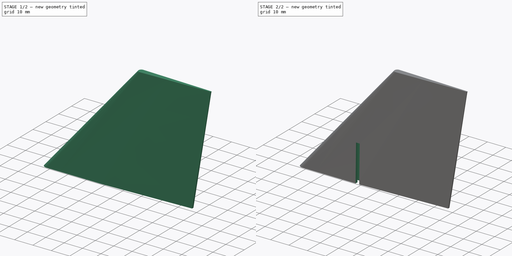
[diagram: build sequence overview — one tinted view per stage of 2, left to right]
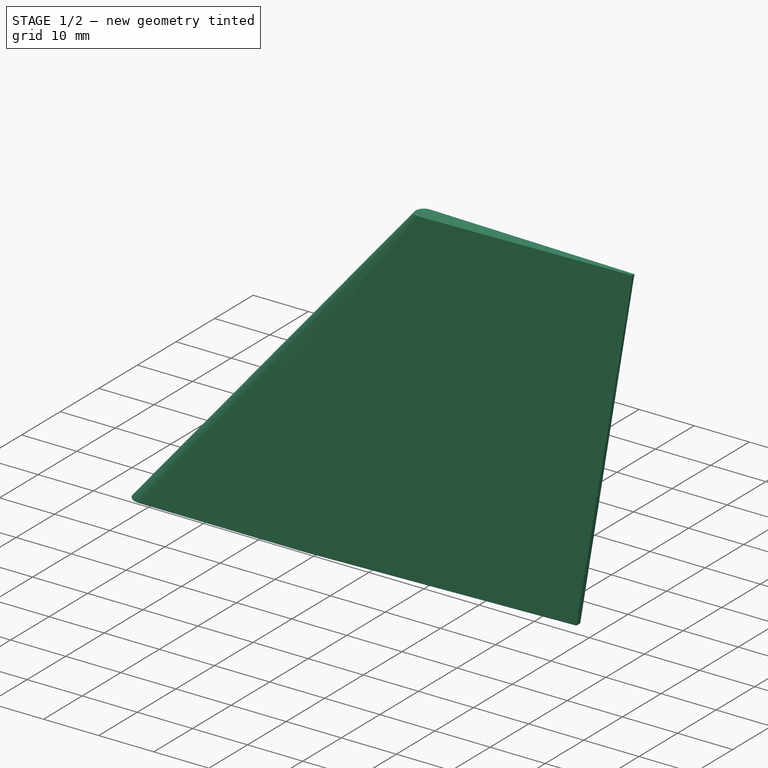
[diagram: stage 1 of 2 — iso view after this stage's code; geometry added in this stage tinted green]
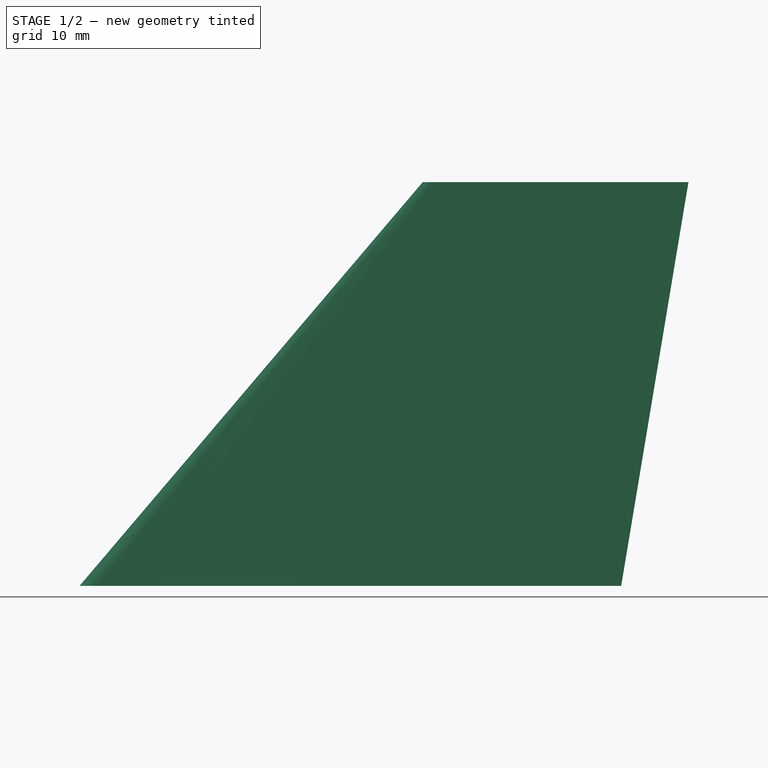
[diagram: stage 1 of 2 — front view after this stage's code; geometry added in this stage tinted green]
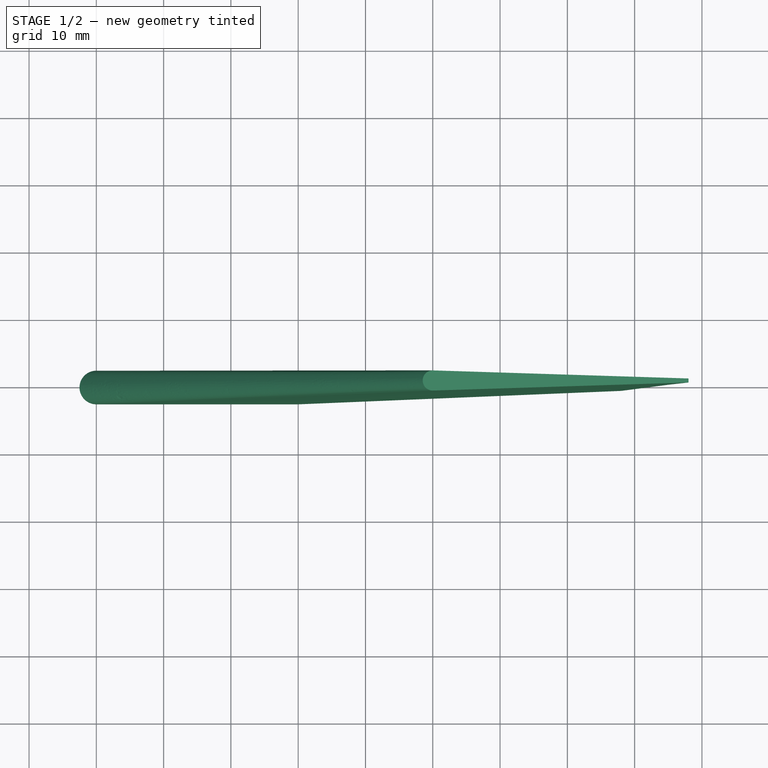
[diagram: stage 1 of 2 — top view after this stage's code; geometry added in this stage tinted green]
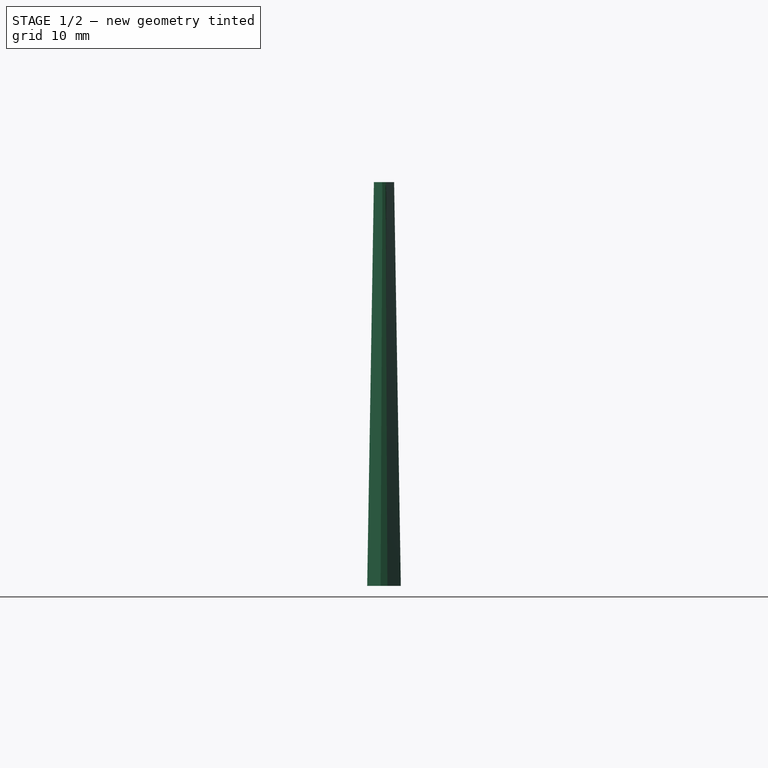
[diagram: stage 1 of 2 — right view after this stage's code; geometry added in this stage tinted green]
FCSTD DOCUMENT  (FreeCAD 0.21R33668 +26 (Git))
Label: capsule_aileron
License: All rights reserved
LicenseURL: http://en.wikipedia.org/wiki/All_rights_reserved
objects: Sketcher::SketchObject×3, PartDesign::AdditiveLoft×1, PartDesign::Pocket×1, PartDesign::Body×1
note: 8 computed .brp shape members not serialized (recipe doc carries the construction recipe); baked Part::Feature solids carry a one-line shape summary decoded from their .brp

FEATURE [Sketcher::SketchObject] Sketch
  FullyConstrained = true
  sketch-geometry (7):
    g0: LineSegment StartX=78 StartY=0 StartZ=0 EndX=78 EndY=0.5 EndZ=0
    g1: ArcOfCircle CenterX=0 CenterY=0 CenterZ=0 NormalX=0 NormalY=0 NormalZ=1 AngleXU=0 Radius=2.5 StartAngle=1.5708 EndAngle=4.71239
    g2: LineSegment StartX=78 StartY=0 StartZ=0 EndX=78 EndY=-0.5 EndZ=0
    g3: LineSegment StartX=2e-16 StartY=2.5 StartZ=0 EndX=30 EndY=2.5 EndZ=0
    g4: LineSegment StartX=-5e-16 StartY=-2.5 StartZ=0 EndX=30 EndY=-2.5 EndZ=0
    g5: LineSegment StartX=30 StartY=-2.5 StartZ=0 EndX=78 EndY=-0.5 EndZ=0
    g6: LineSegment StartX=30 StartY=2.5 StartZ=0 EndX=78 EndY=0.5 EndZ=0
  constraints (21):
    c: Coincident(g1,g-1)
    c: PointOnObject(g0,g-1)
    c: Vertical(g0)
    c: DistanceY(g0,g0) = 0.5
    c: DistanceX(g1,g0) = 78
    c: Radius(g1) = 2.5
    c: PointOnObject(g1,g-2)
    c: PointOnObject(g1,g-2)
    c: Coincident(g2,g0)
    c: Vertical(g2)
    c: DistanceY(g2,g2) = 0.5
    c: Coincident(g3,g1)
    c: Horizontal(g3)
    c: DistanceX(g3,g3) = 30
    c: Coincident(g4,g1)
    c: Horizontal(g4)
    c: DistanceX(g4,g4) = 30
    c: Coincident(g5,g4)
    c: Coincident(g5,g2)
    c: Coincident(g6,g3)
    c: Coincident(g6,g0)
FEATURE [Sketcher::SketchObject] Sketch001
  FullyConstrained = true
  Placement = pos=(50,0,60) rot=(0,0,1;0rad)
  sketch-geometry (5):
    g0: LineSegment StartX=38 StartY=0 StartZ=0 EndX=38 EndY=0.3 EndZ=0
    g1: ArcOfCircle CenterX=0 CenterY=0 CenterZ=0 NormalX=0 NormalY=0 NormalZ=1 AngleXU=0 Radius=1.5 StartAngle=1.5708 EndAngle=4.71239
    g2: LineSegment StartX=1e-16 StartY=1.5 StartZ=0 EndX=38 EndY=0.3 EndZ=0
    g3: LineSegment StartX=38 StartY=0 StartZ=0 EndX=38 EndY=-0.3 EndZ=0
    g4: LineSegment StartX=38 StartY=-0.3 StartZ=0 EndX=0 EndY=-1.5 EndZ=0
  constraints (15):
    c: Coincident(g1,g-1)
    c: PointOnObject(g0,g-1)
    c: Vertical(g0)
    c: DistanceY(g0,g0) = 0.3
    c: Radius(g1) = 1.5
    c: PointOnObject(g1,g-2)
    c: PointOnObject(g1,g-2)
    c: Coincident(g2,g1)
    c: Coincident(g2,g0)
    c: Coincident(g3,g0)
    c: Vertical(g3)
    c: Coincident(g4,g3)
    c: Coincident(g4,g1)
    c: DistanceX(g1,g0) = 38
    c: Equal(g0,g3)
FEATURE [PartDesign::AdditiveLoft] AdditiveLoft
  Closed = false
  Profile = -> Sketch
  Ruled = false
  Sections = -> [Sketch001]
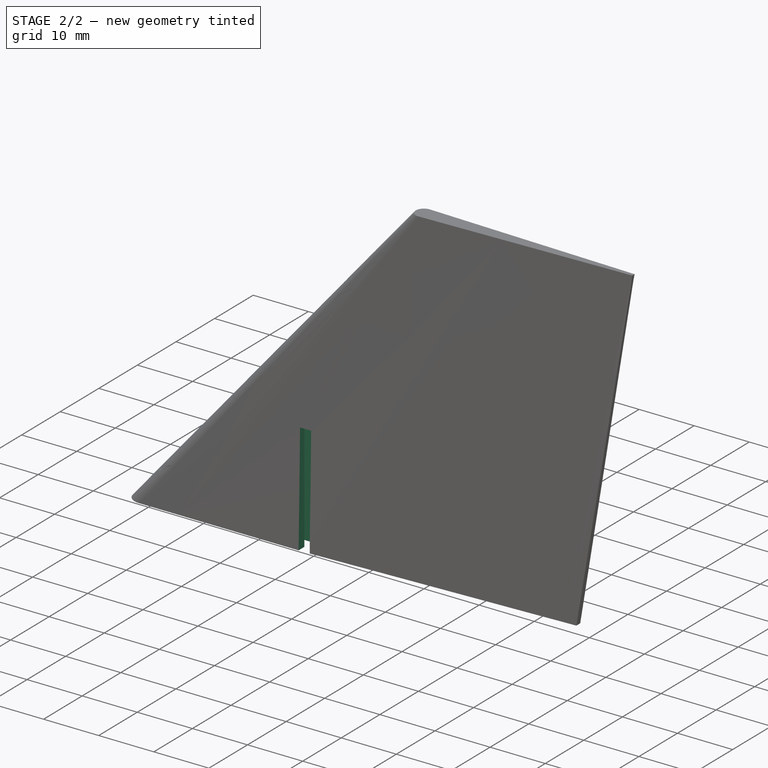
[diagram: stage 2 of 2 — iso view after this stage's code; geometry added in this stage tinted green]
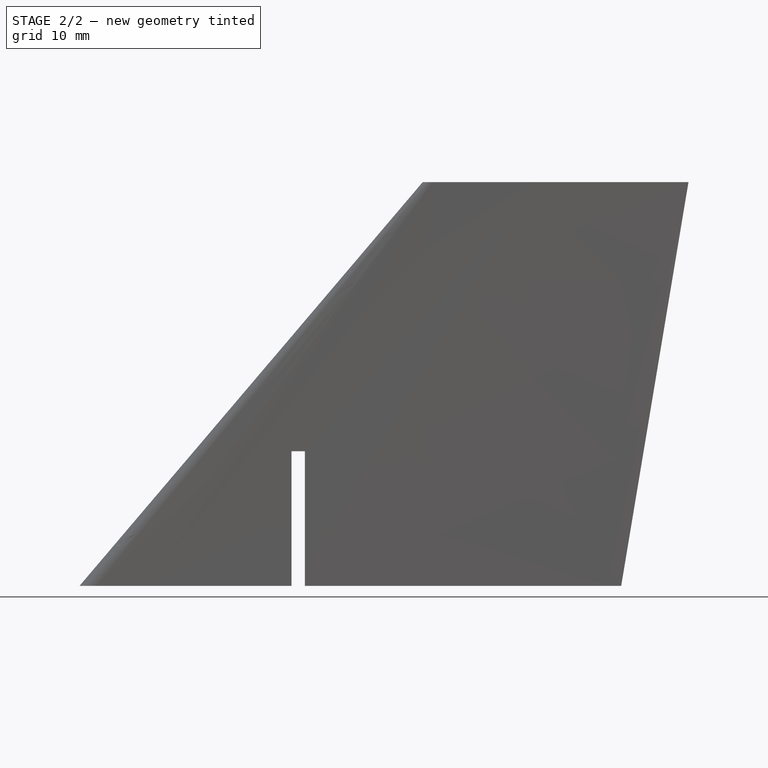
[diagram: stage 2 of 2 — front view after this stage's code; geometry added in this stage tinted green]
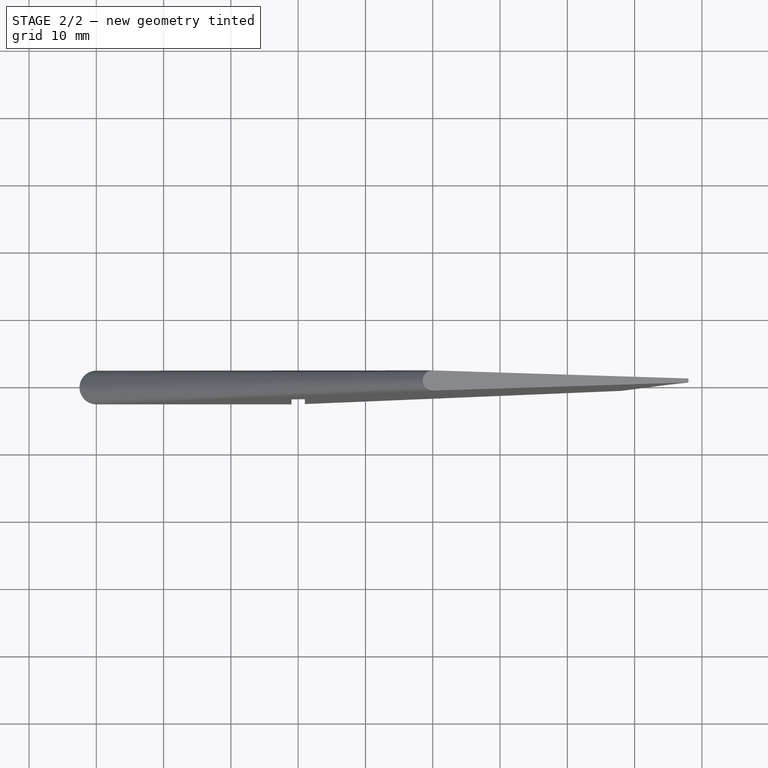
[diagram: stage 2 of 2 — top view after this stage's code; geometry added in this stage tinted green]
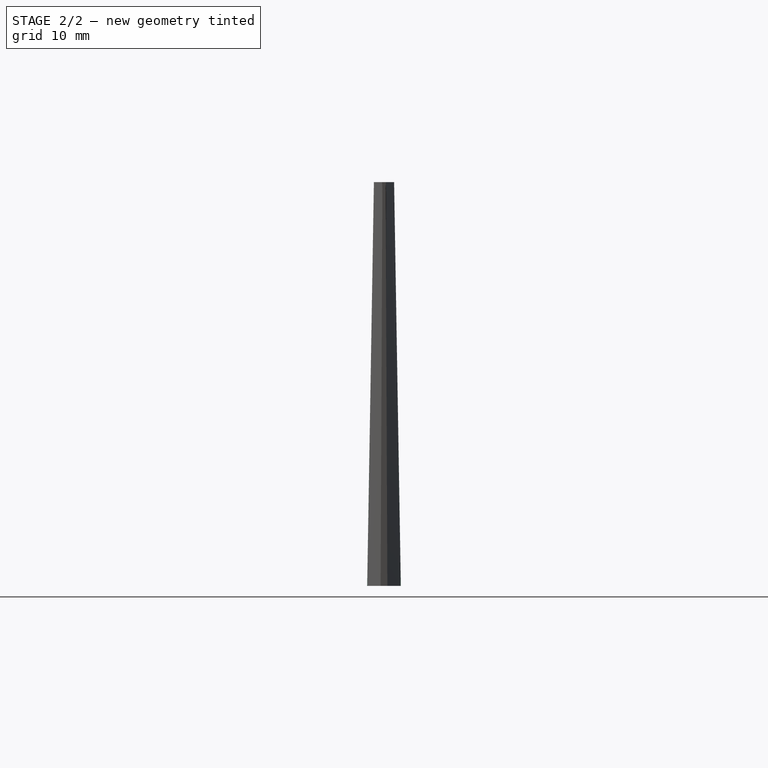
[diagram: stage 2 of 2 — right view after this stage's code; geometry added in this stage tinted green]
FEATURE [Sketcher::SketchObject] Sketch002
  AttachmentOffset = pos=(30,0,0) rot=(0,0,1;0rad)
  FullyConstrained = true
  MapMode = 5
  Placement = pos=(30,0,0) rot=(0,0,1;0rad)
  Support = -> [XY_Plane]
  sketch-geometry (12):
    g0: LineSegment StartX=1 StartY=1 StartZ=0 EndX=2.6 EndY=1 EndZ=0
    g1: LineSegment StartX=1 StartY=-1 StartZ=0 EndX=2.6 EndY=-1 EndZ=0
    g2: LineSegment StartX=2.6 StartY=1 StartZ=0 EndX=2.6 EndY=-1 EndZ=0
    g3: LineSegment StartX=-1 StartY=1 StartZ=0 EndX=-2.6 EndY=1 EndZ=0
    g4: LineSegment StartX=-1 StartY=-1 StartZ=0 EndX=-2.6 EndY=-1 EndZ=0
    g5: LineSegment StartX=-2.6 StartY=1 StartZ=0 EndX=-2.6 EndY=-1 EndZ=0
    g6: LineSegment StartX=1 StartY=1 StartZ=0 EndX=1 EndY=2.6 EndZ=0
    g7: LineSegment StartX=-1 StartY=1 StartZ=0 EndX=-1 EndY=2.6 EndZ=0
    g8: LineSegment StartX=-1 StartY=2.6 StartZ=0 EndX=1 EndY=2.6 EndZ=0
    g9: LineSegment StartX=-1 StartY=-1 StartZ=0 EndX=-1 EndY=-2.6 EndZ=0
    g10: LineSegment StartX=-1 StartY=-2.6 StartZ=0 EndX=1 EndY=-2.6 EndZ=0
    g11: LineSegment StartX=1 StartY=-1 StartZ=0 EndX=1 EndY=-2.6 EndZ=0
  constraints (36):
    c: Horizontal(g0)
    c: DistanceX(g-1,g0) = 1
    c: Horizontal(g1)
    c: Coincident(g2,g0)
    c: Coincident(g2,g1)
    c: Vertical(g2)
    c: Horizontal(g3)
    c: Horizontal(g4)
    c: Coincident(g5,g3)
    c: Coincident(g5,g4)
    c: Vertical(g5)
    c: Coincident(g6,g0)
    c: Vertical(g6)
    c: DistanceY(g6,g6) = 1.6
    c: Vertical(g7)
    c: Coincident(g8,g7)
    c: Coincident(g8,g6)
    c: Horizontal(g8)
    c: Vertical(g11)
    c: Vertical(g9)
    c: Coincident(g10,g9)
    c: Coincident(g10,g11)
    c: Horizontal(g10)
    c: Coincident(g4,g9)
    c: Coincident(g1,g11)
    c: DistanceY(g1,g-1) = 1
    c: Equal(g9,g11)
    c: Equal(g11,g1)
    c: Equal(g1,g0)
    c: Coincident(g3,g7)
    c: Equal(g3,g0)
    c: Equal(g5,g2)
    c: Equal(g8,g10)
    c: Distance(g5) = 2
    c: Equal(g5,g8)
    c: Equal(g1,g6)
FEATURE [PartDesign::Pocket] Pocket
  BaseFeature = -> AdditiveLoft
  Direction = (0,0,-1)
  Length = 40
  Length2 = 5
  Midplane = true
  Profile = -> Sketch002
  ReferenceAxis = -> Sketch002 [N_Axis]
  Type = 0
FEATURE [PartDesign::Body] Body
  Group = -> [Sketch,Sketch001,AdditiveLoft,Sketch002,Pocket]
  Origin = -> Origin
  Tip = -> Pocket
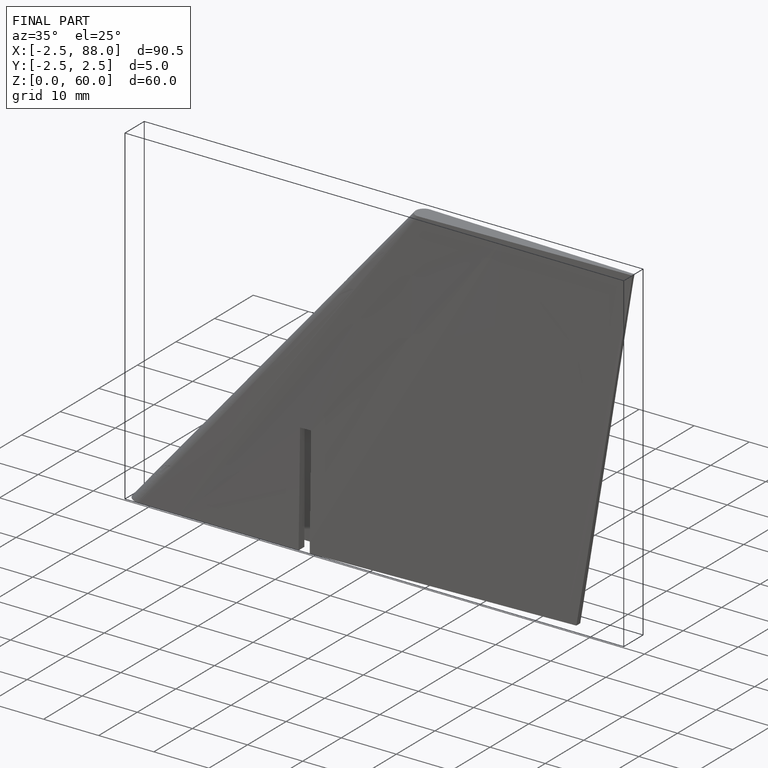
[diagram: finished part — iso view with bounding-box wireframe]
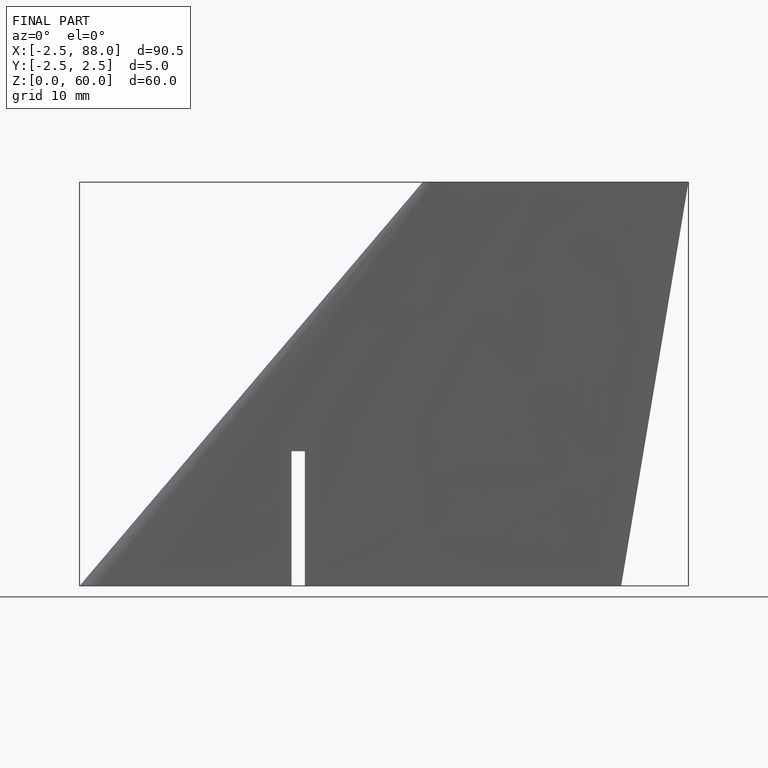
[diagram: finished part — front view with bounding-box wireframe]
